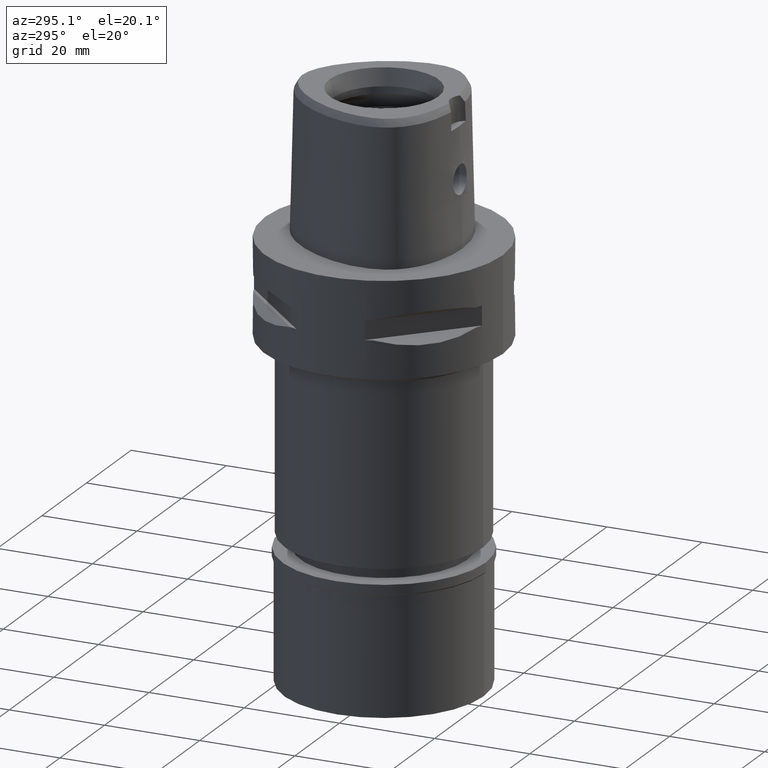
[diagram: clean part render]
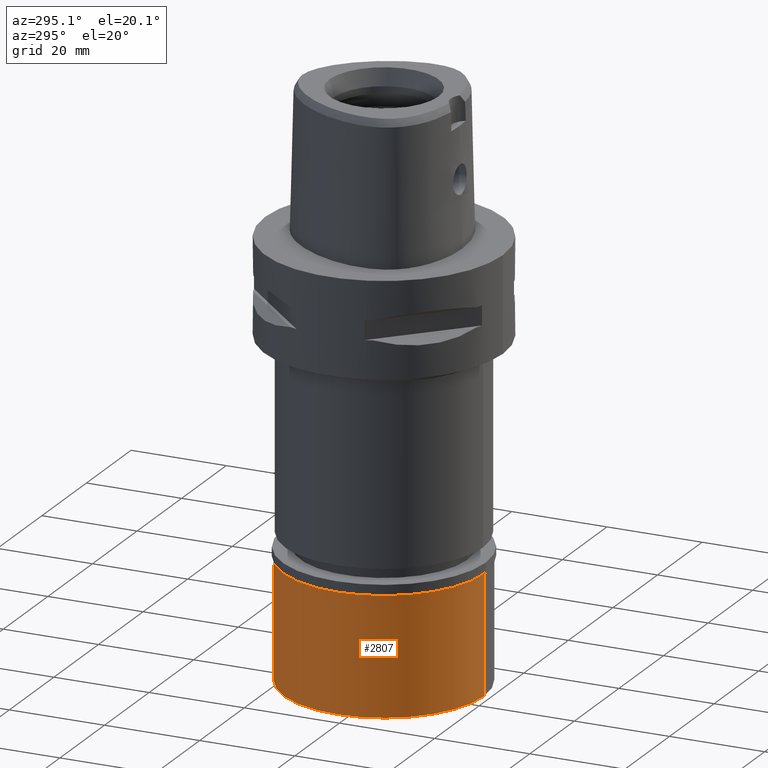
[diagram: same view with one face highlighted and labeled with its STEP entity id]
A machine part, auxiliary view. The second image highlights one B-rep face of the part: STEP entity #2807.
In plain terms, the highlighted cylindrical surface (partial cylindrical patch) has radius 21 mm, axis along (0, 0, -1).
Its self-contained STEP definition (entity closure, byte-faithful):
#309 = DIRECTION ( 'NONE',  ( 0.0000000000000000000, 0.0000000000000000000, -1.000000000000000000 ) ) ;
#332 = DIRECTION ( 'NONE',  ( 0.0000000000000000000, -1.000000000000000000, 0.0000000000000000000 ) ) ;
#527 = DIRECTION ( 'NONE',  ( 0.0000000000000000000, 0.0000000000000000000, 1.000000000000000000 ) ) ;
#634 = VECTOR ( 'NONE', #2680, 1000.000000000000000 ) ;
#905 = DIRECTION ( 'NONE',  ( 0.0000000000000000000, 0.0000000000000000000, -1.000000000000000000 ) ) ;
#1071 = EDGE_CURVE ( 'NONE', #4785, #2408, #2939, .T. ) ;
#1072 = CYLINDRICAL_SURFACE ( 'NONE', #2030, 21.00000000000000000 ) ;
#1180 = LINE ( 'NONE', #3444, #634 ) ;
#1249 = CARTESIAN_POINT ( 'NONE',  ( 0.0000000000000000000, -21.00000000000000000, -2.299999999999999822 ) ) ;
#1462 = ORIENTED_EDGE ( 'NONE', *, *, #4567, .T. ) ;
#1736 = DIRECTION ( 'NONE',  ( 0.0000000000000000000, -1.000000000000000000, 0.0000000000000000000 ) ) ;
#1931 = CARTESIAN_POINT ( 'NONE',  ( 0.0000000000000000000, 21.00000000000000000, -27.09999999999999787 ) ) ;
#2011 = CARTESIAN_POINT ( 'NONE',  ( 0.0000000000000000000, 0.0000000000000000000, -27.09999999999999787 ) ) ;
#2013 = VECTOR ( 'NONE', #4806, 1000.000000000000000 ) ;
#2029 = ORIENTED_EDGE ( 'NONE', *, *, #2156, .F. ) ;
#2030 = AXIS2_PLACEMENT_3D ( 'NONE', #4777, #309, #332 ) ;
#2033 = AXIS2_PLACEMENT_3D ( 'NONE', #3603, #905, #1736 ) ;
#2064 = CARTESIAN_POINT ( 'NONE',  ( 0.0000000000000000000, 21.00000000000000000, -2.299999999999999822 ) ) ;
#2156 = EDGE_CURVE ( 'NONE', #2515, #2408, #2498, .T. ) ;
#2408 = VERTEX_POINT ( 'NONE', #3019 ) ;
#2498 = LINE ( 'NONE', #4006, #2013 ) ;
#2515 = VERTEX_POINT ( 'NONE', #1249 ) ;
#2680 = DIRECTION ( 'NONE',  ( 0.0000000000000000000, 0.0000000000000000000, -1.000000000000000000 ) ) ;
#2751 = ORIENTED_EDGE ( 'NONE', *, *, #1071, .T. ) ;
#2807 = ADVANCED_FACE ( 'NONE', ( #4018 ), #1072, .T. ) ;
#2939 = CIRCLE ( 'NONE', #3552, 21.00000000000000000 ) ;
#3019 = CARTESIAN_POINT ( 'NONE',  ( 0.0000000000000000000, -21.00000000000000000, -27.09999999999999787 ) ) ;
#3089 = VERTEX_POINT ( 'NONE', #2064 ) ;
#3251 = DIRECTION ( 'NONE',  ( 0.0000000000000000000, 1.000000000000000000, 0.0000000000000000000 ) ) ;
#3444 = CARTESIAN_POINT ( 'NONE',  ( 0.0000000000000000000, 21.00000000000000000, -2.299999999999999822 ) ) ;
#3511 = EDGE_CURVE ( 'NONE', #2515, #3089, #3918, .T. ) ;
#3552 = AXIS2_PLACEMENT_3D ( 'NONE', #2011, #527, #3251 ) ;
#3603 = CARTESIAN_POINT ( 'NONE',  ( 0.0000000000000000000, 0.0000000000000000000, -2.299999999999999822 ) ) ;
#3886 = ORIENTED_EDGE ( 'NONE', *, *, #3511, .T. ) ;
#3918 = CIRCLE ( 'NONE', #2033, 21.00000000000000000 ) ;
#4006 = CARTESIAN_POINT ( 'NONE',  ( 0.0000000000000000000, -21.00000000000000000, -2.299999999999999822 ) ) ;
#4018 = FACE_OUTER_BOUND ( 'NONE', #4358, .T. ) ;
#4358 = EDGE_LOOP ( 'NONE', ( #2751, #2029, #3886, #1462 ) ) ;
#4567 = EDGE_CURVE ( 'NONE', #3089, #4785, #1180, .T. ) ;
#4777 = CARTESIAN_POINT ( 'NONE',  ( 0.0000000000000000000, 0.0000000000000000000, 0.0000000000000000000 ) ) ;
#4785 = VERTEX_POINT ( 'NONE', #1931 ) ;
#4806 = DIRECTION ( 'NONE',  ( 0.0000000000000000000, 0.0000000000000000000, -1.000000000000000000 ) ) ;